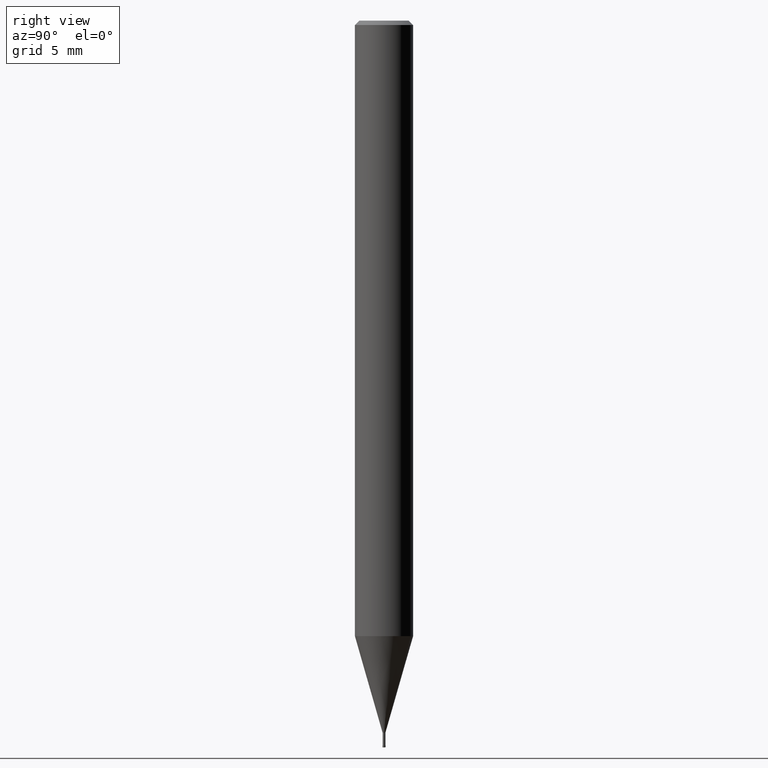
[diagram: clean part render]
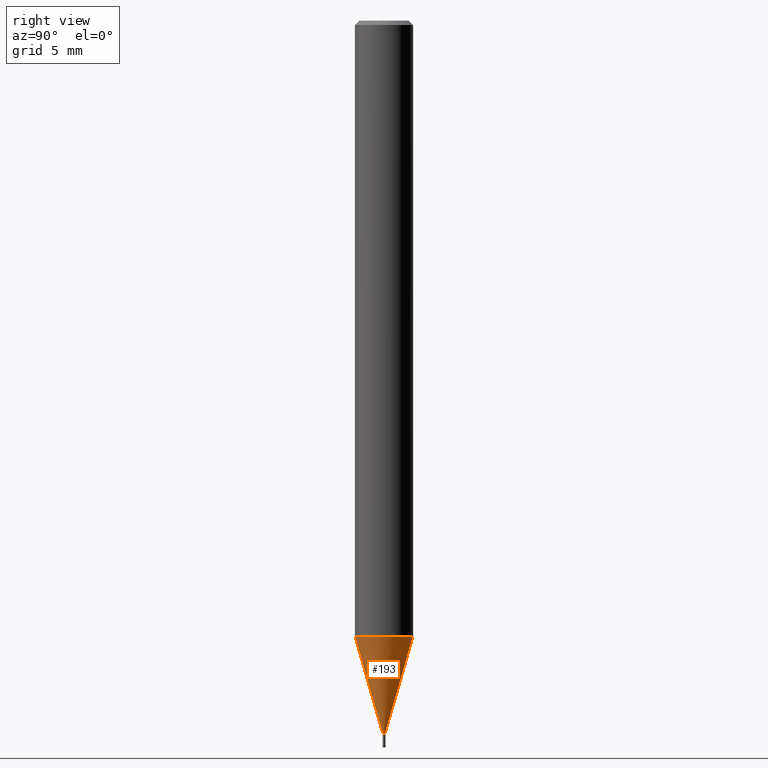
[diagram: same view with one face highlighted and labeled with its STEP entity id]
A machine part, right view. The second image highlights one B-rep face of the part: STEP entity #193.
In plain terms, the highlighted conical surface has half-angle 16.001 deg.
Its self-contained STEP definition (entity closure, byte-faithful):
#143=VERTEX_POINT('',#378);
#149=EDGE_CURVE('',#143,#171,#385,.T.);
#155=VERTEX_POINT('',#391);
#165=EDGE_CURVE('',#155,#171,#403,.T.);
#171=VERTEX_POINT('',#409);
#193=ADVANCED_FACE('',(#435),#436,.T.);
#227=VERTEX_POINT('',#473);
#265=EDGE_CURVE('',#143,#227,#514,.T.);
#331=EDGE_CURVE('',#227,#155,#591,.T.);
#378=CARTESIAN_POINT('',(0.0,1.99995,-42.338));
#385=CIRCLE('',#645,1.99995);
#391=CARTESIAN_POINT('',(1.13214857410879E-017,-0.09245,-48.99));
#403=LINE('',#665,#666);
#409=CARTESIAN_POINT('',(2.44915147732706E-016,-1.99995,-42.338));
#435=FACE_OUTER_BOUND('',#703,.T.);
#436=CONICAL_SURFACE('',#704,1.0462,0.279262361421134);
#473=CARTESIAN_POINT('',(0.0,0.09245,-48.99));
#514=LINE('',#806,#807);
#591=CIRCLE('',#908,0.09245);
#645=AXIS2_PLACEMENT_3D('',#959,#960,#961);
#665=CARTESIAN_POINT('',(1.28118316736897E-016,-1.0462,-45.664));
#666=VECTOR('',#977,1.0);
#703=EDGE_LOOP('',(#1017,#1018,#1019,#1020));
#704=AXIS2_PLACEMENT_3D('',#1021,#1022,#1023);
#806=CARTESIAN_POINT('',(-1.28118316736897E-016,1.0462,-45.664));
#807=VECTOR('',#1109,1.0);
#908=AXIS2_PLACEMENT_3D('',#1214,#1215,#1216);
#959=CARTESIAN_POINT('',(0.0,0.0,-42.338));
#960=DIRECTION('',(0.0,0.0,-1.0));
#961=DIRECTION('',(0.0,1.0,0.0));
#977=DIRECTION('',(3.37558653544073E-017,-0.275646661876649,0.961259027419904));
#1017=ORIENTED_EDGE('',*,*,#265,.F.);
#1018=ORIENTED_EDGE('',*,*,#149,.T.);
#1019=ORIENTED_EDGE('',*,*,#165,.F.);
#1020=ORIENTED_EDGE('',*,*,#331,.F.);
#1021=CARTESIAN_POINT('',(0.0,0.0,-45.664));
#1022=DIRECTION('',(-0.0,-0.0,1.0));
#1023=DIRECTION('',(0.0,1.0,0.0));
#1109=DIRECTION('',(3.37558653544073E-017,-0.275646661876649,-0.961259027419904));
#1214=CARTESIAN_POINT('',(0.0,0.0,-48.99));
#1215=DIRECTION('',(0.0,0.0,-1.0));
#1216=DIRECTION('',(0.0,1.0,0.0));